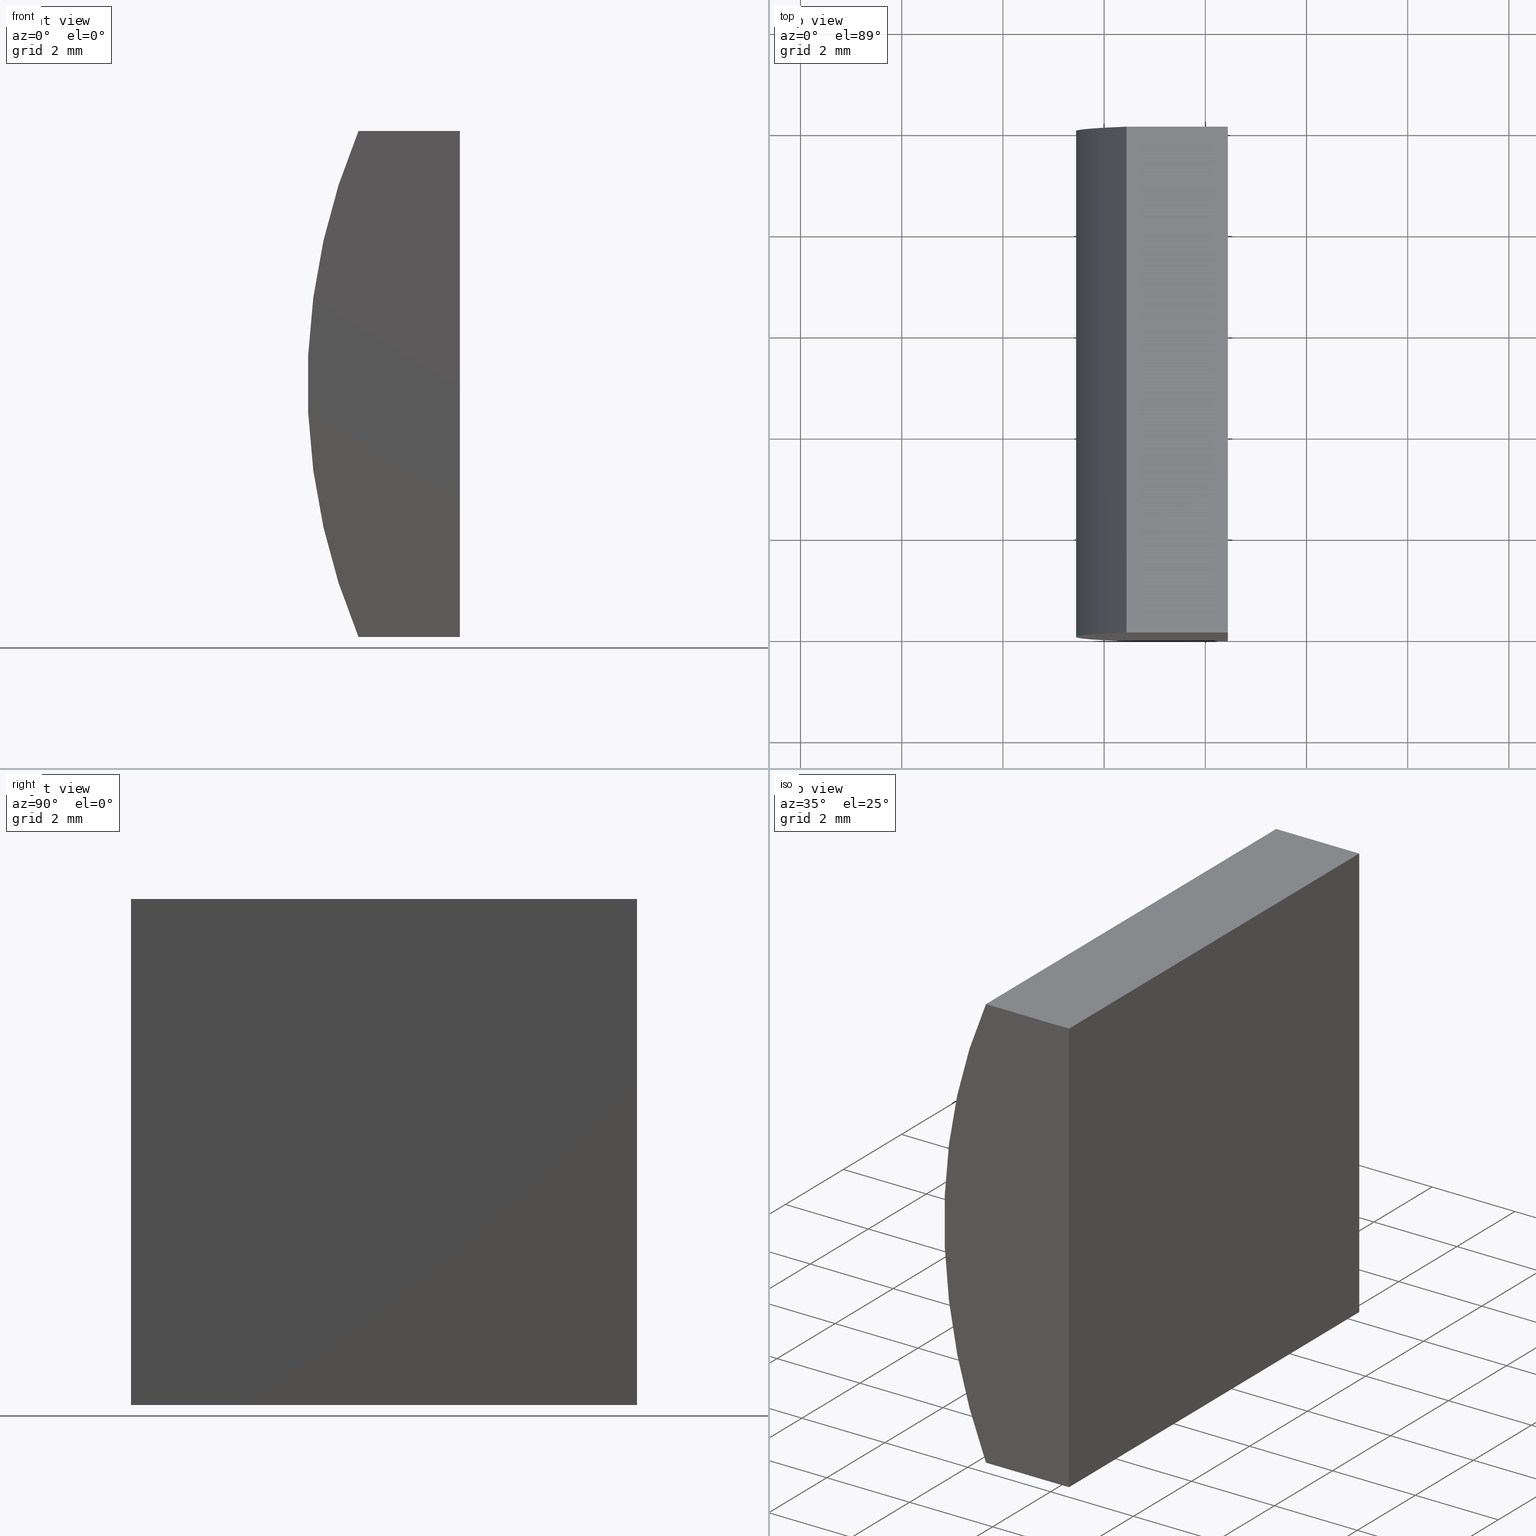
[diagram: canonical four-view strip — front | top / right | iso, engineering-drawing reading convention]
A machine part, canonical four-view strip (front | top / right | iso — engineering-drawing reading convention). The complete STEP part file that produces these views, byte-faithful:
ISO-10303-21;
HEADER;
FILE_DESCRIPTION (( 'STEP AP214' ),
    '1' );
FILE_NAME ('155009.STEP',
    '2019-06-17T01:13:44',
    ( 'user' ),
    ( '΢���й�' ),
    'SwSTEP 2.0',
    'SolidWorks 2016',
    '' );
FILE_SCHEMA (( 'AUTOMOTIVE_DESIGN' ));
ENDSEC;

DATA;
#1 = VECTOR ( 'NONE', #113, 1000.000000000000000 ) ;
#2 = ORIENTED_EDGE ( 'NONE', *, *, #143, .T. ) ;
#3 = UNCERTAINTY_MEASURE_WITH_UNIT (LENGTH_MEASURE( 1.000000000000000100E-005 ), #56, 'distance_accuracy_value', 'NONE');
#4 = ORIENTED_EDGE ( 'NONE', *, *, #29, .F. ) ;
#5 = DIRECTION ( 'NONE',  ( 3.469446951953614200E-016, 0.0000000000000000000, 1.000000000000000000 ) ) ;
#6 = PLANE ( 'NONE',  #48 ) ;
#7 = VECTOR ( 'NONE', #132, 1000.000000000000000 ) ;
#8 = CARTESIAN_POINT ( 'NONE',  ( -7.558082365299958900, 0.0000000000000000000, 5.000000000000000000 ) ) ;
#9 = DIRECTION ( 'NONE',  ( -1.000000000000000000, -0.0000000000000000000, -0.0000000000000000000 ) ) ;
#10 = FILL_AREA_STYLE_COLOUR ( '', #98 ) ;
#11 = FACE_OUTER_BOUND ( 'NONE', #35, .T. ) ;
#12 = DIRECTION ( 'NONE',  ( 0.0000000000000000000, 1.000000000000000000, 0.0000000000000000000 ) ) ;
#13 = LINE ( 'NONE', #19, #125 ) ;
#14 = ADVANCED_FACE ( 'NONE', ( #16 ), #122, .F. ) ;
#15 = PRODUCT_CONTEXT ( 'NONE', #25, 'mechanical' ) ;
#16 = FACE_OUTER_BOUND ( 'NONE', #97, .T. ) ;
#17 = UNCERTAINTY_MEASURE_WITH_UNIT (LENGTH_MEASURE( 1.000000000000000100E-005 ), #190, 'distance_accuracy_value', 'NONE');
#18 = DIRECTION ( 'NONE',  ( -0.0000000000000000000, -1.000000000000000000, -0.0000000000000000000 ) ) ;
#19 = CARTESIAN_POINT ( 'NONE',  ( -5.554795665148737300, 10.00000000000000000, -5.000000000000000000 ) ) ;
#20 = CARTESIAN_POINT ( 'NONE',  ( -5.554795665148733800, 10.00000000000000000, 5.000000000000000000 ) ) ;
#21 = SURFACE_SIDE_STYLE ('',( #140 ) ) ;
#22 = CARTESIAN_POINT ( 'NONE',  ( -7.558082365299958900, 0.0000000000000000000, -5.000000000000000000 ) ) ;
#23 = ORIENTED_EDGE ( 'NONE', *, *, #101, .T. ) ;
#24 = CARTESIAN_POINT ( 'NONE',  ( -7.558082365299958900, 10.00000000000000000, -5.000000000000000000 ) ) ;
#25 = APPLICATION_CONTEXT ( 'automotive_design' ) ;
#26 = DIRECTION ( 'NONE',  ( 0.0000000000000000000, 1.000000000000000000, 0.0000000000000000000 ) ) ;
#27 = EDGE_LOOP ( 'NONE', ( #31, #199, #45, #167 ) ) ;
#28 = DIRECTION ( 'NONE',  ( 0.0000000000000000000, 0.0000000000000000000, 1.000000000000000000 ) ) ;
#29 = EDGE_CURVE ( 'NONE', #172, #164, #135, .T. ) ;
#30 = EDGE_CURVE ( 'NONE', #172, #111, #39, .T. ) ;
#31 = ORIENTED_EDGE ( 'NONE', *, *, #65, .T. ) ;
#32 = SURFACE_STYLE_FILL_AREA ( #194 ) ;
#33 = CARTESIAN_POINT ( 'NONE',  ( -5.554795665148733800, 10.00000000000000000, 5.000000000000000000 ) ) ;
#34 = CARTESIAN_POINT ( 'NONE',  ( 4.355204334851265500, 10.00000000000000000, 4.286263797015675000E-017 ) ) ;
#35 = EDGE_LOOP ( 'NONE', ( #196, #185, #170, #162 ) ) ;
#36 = VECTOR ( 'NONE', #18, 1000.000000000000000 ) ;
#37 = PRODUCT_DEFINITION_SHAPE ( 'NONE', 'NONE',  #204 ) ;
#38 = DIRECTION ( 'NONE',  ( 0.0000000000000000000, 0.0000000000000000000, 1.000000000000000000 ) ) ;
#39 = LINE ( 'NONE', #126, #49 ) ;
#40 = SURFACE_SIDE_STYLE ('',( #32 ) ) ;
#41 = AXIS2_PLACEMENT_3D ( 'NONE', #34, #99, #52 ) ;
#42 = VERTEX_POINT ( 'NONE', #191 ) ;
#43 = VERTEX_POINT ( 'NONE', #8 ) ;
#44 =( NAMED_UNIT ( * ) SI_UNIT ( $, .STERADIAN. ) SOLID_ANGLE_UNIT ( ) );
#45 = ORIENTED_EDGE ( 'NONE', *, *, #120, .F. ) ;
#46 = DIRECTION ( 'NONE',  ( -1.000000000000000000, 0.0000000000000000000, -0.0000000000000000000 ) ) ;
#47 = CARTESIAN_POINT ( 'NONE',  ( -5.554795665148733800, 0.0000000000000000000, 5.000000000000000000 ) ) ;
#48 = AXIS2_PLACEMENT_3D ( 'NONE', #60, #110, #5 ) ;
#49 = VECTOR ( 'NONE', #175, 1000.000000000000000 ) ;
#50 = CLOSED_SHELL ( 'NONE', ( #55, #68, #119, #14, #136, #201 ) ) ;
#51 = FILL_AREA_STYLE ('',( #10 ) ) ;
#52 = DIRECTION ( 'NONE',  ( 0.0000000000000000000, 0.0000000000000000000, -1.000000000000000000 ) ) ;
#53 = LINE ( 'NONE', #95, #186 ) ;
#54 = VECTOR ( 'NONE', #59, 1000.000000000000000 ) ;
#55 = ADVANCED_FACE ( 'NONE', ( #11 ), #193, .T. ) ;
#56 =( LENGTH_UNIT ( ) NAMED_UNIT ( * ) SI_UNIT ( .MILLI., .METRE. ) );
#57 = CARTESIAN_POINT ( 'NONE',  ( -7.558082365299958900, 10.00000000000000000, -5.000000000000000000 ) ) ;
#58 = ORIENTED_EDGE ( 'NONE', *, *, #66, .T. ) ;
#59 = DIRECTION ( 'NONE',  ( 1.000000000000000000, 0.0000000000000000000, 0.0000000000000000000 ) ) ;
#60 = CARTESIAN_POINT ( 'NONE',  ( -5.554795665148737300, 10.00000000000000000, -5.000000000000000000 ) ) ;
#61 = PRODUCT_RELATED_PRODUCT_CATEGORY ( 'part', '', ( #94 ) ) ;
#62 = VERTEX_POINT ( 'NONE', #20 ) ;
#63 = FACE_OUTER_BOUND ( 'NONE', #156, .T. ) ;
#64 = DIRECTION ( 'NONE',  ( -1.000000000000000000, -0.0000000000000000000, -0.0000000000000000000 ) ) ;
#65 = EDGE_CURVE ( 'NONE', #43, #108, #72, .T. ) ;
#66 = EDGE_CURVE ( 'NONE', #62, #172, #13, .T. ) ;
#67 = VECTOR ( 'NONE', #9, 1000.000000000000000 ) ;
#68 = ADVANCED_FACE ( 'NONE', ( #138 ), #81, .F. ) ;
#69 = LINE ( 'NONE', #183, #36 ) ;
#70 = CARTESIAN_POINT ( 'NONE',  ( -5.554795665148737300, 0.0000000000000000000, -5.000000000000000000 ) ) ;
#71 = STYLED_ITEM ( 'NONE', ( #103 ), #181 ) ;
#72 = LINE ( 'NONE', #142, #1 ) ;
#73 = DIRECTION ( 'NONE',  ( 1.000000000000000000, 0.0000000000000000000, -0.0000000000000000000 ) ) ;
#74 = ORIENTED_EDGE ( 'NONE', *, *, #76, .T. ) ;
#75 = CARTESIAN_POINT ( 'NONE',  ( -5.554795665148737300, 0.0000000000000000000, -5.000000000000000000 ) ) ;
#76 = EDGE_CURVE ( 'NONE', #62, #108, #160, .T. ) ;
#77 = CARTESIAN_POINT ( 'NONE',  ( -7.558082365299958900, 10.00000000000000000, 5.000000000000000000 ) ) ;
#78 = ORIENTED_EDGE ( 'NONE', *, *, #65, .F. ) ;
#79 = CIRCLE ( 'NONE', #149, 12.92000000000000300 ) ;
#80 = AXIS2_PLACEMENT_3D ( 'NONE', #187, #26, #106 ) ;
#81 = PLANE ( 'NONE',  #93 ) ;
#82 = LINE ( 'NONE', #70, #86 ) ;
#83 = AXIS2_PLACEMENT_3D ( 'NONE', #92, #12, #182 ) ;
#84 = ORIENTED_EDGE ( 'NONE', *, *, #188, .F. ) ;
#85 = CARTESIAN_POINT ( 'NONE',  ( -7.558082365299958900, 10.00000000000000000, -5.000000000000000000 ) ) ;
#86 = VECTOR ( 'NONE', #89, 1000.000000000000000 ) ;
#87 =( NAMED_UNIT ( * ) SI_UNIT ( $, .STERADIAN. ) SOLID_ANGLE_UNIT ( ) );
#88 = STYLED_ITEM ( 'NONE', ( #184 ), #178 ) ;
#89 = DIRECTION ( 'NONE',  ( -3.469446951953614200E-016, -0.0000000000000000000, -1.000000000000000000 ) ) ;
#90 = ORIENTED_EDGE ( 'NONE', *, *, #120, .T. ) ;
#91 = FACE_OUTER_BOUND ( 'NONE', #197, .T. ) ;
#92 = CARTESIAN_POINT ( 'NONE',  ( 4.355204334851265500, 0.0000000000000000000, 4.286263797015675000E-017 ) ) ;
#93 = AXIS2_PLACEMENT_3D ( 'NONE', #77, #171, #46 ) ;
#94 = PRODUCT ( '155009', '155009', '', ( #15 ) ) ;
#95 = CARTESIAN_POINT ( 'NONE',  ( -7.558082365299958900, 0.0000000000000000000, -5.000000000000000000 ) ) ;
#96 = DIRECTION ( 'NONE',  ( 0.0000000000000000000, 0.0000000000000000000, 1.000000000000000000 ) ) ;
#97 = EDGE_LOOP ( 'NONE', ( #23, #114, #4, #129 ) ) ;
#98 = COLOUR_RGB ( '',1.000000000000000000, 1.000000000000000000, 1.000000000000000000 ) ;
#99 = DIRECTION ( 'NONE',  ( -0.0000000000000000000, -1.000000000000000000, -0.0000000000000000000 ) ) ;
#100 = SURFACE_STYLE_USAGE ( .BOTH. , #40 ) ;
#101 = EDGE_CURVE ( 'NONE', #111, #157, #53, .T. ) ;
#102 =( NAMED_UNIT ( * ) PLANE_ANGLE_UNIT ( ) SI_UNIT ( $, .RADIAN. ) );
#103 = PRESENTATION_STYLE_ASSIGNMENT (( #133 ) ) ;
#104 =( GEOMETRIC_REPRESENTATION_CONTEXT ( 3 ) GLOBAL_UNCERTAINTY_ASSIGNED_CONTEXT ( ( #145 ) ) GLOBAL_UNIT_ASSIGNED_CONTEXT ( ( #203, #102, #87 ) ) REPRESENTATION_CONTEXT ( 'NONE', 'WORKASPACE' ) );
#105 = APPLICATION_CONTEXT ( 'automotive_design' ) ;
#106 = DIRECTION ( 'NONE',  ( 0.0000000000000000000, -0.0000000000000000000, 1.000000000000000000 ) ) ;
#107 = CARTESIAN_POINT ( 'NONE',  ( 4.355204334851265500, 0.0000000000000000000, 4.286263797015675000E-017 ) ) ;
#108 = VERTEX_POINT ( 'NONE', #47 ) ;
#109 = SHAPE_DEFINITION_REPRESENTATION ( #37, #178 ) ;
#110 = DIRECTION ( 'NONE',  ( -1.000000000000000000, 0.0000000000000000000, 3.469446951953614200E-016 ) ) ;
#111 = VERTEX_POINT ( 'NONE', #75 ) ;
#112 = MECHANICAL_DESIGN_GEOMETRIC_PRESENTATION_REPRESENTATION (  '', ( #88 ), #124 ) ;
#113 = DIRECTION ( 'NONE',  ( 1.000000000000000000, 0.0000000000000000000, 0.0000000000000000000 ) ) ;
#114 = ORIENTED_EDGE ( 'NONE', *, *, #192, .F. ) ;
#115 = DIRECTION ( 'NONE',  ( 0.0000000000000000000, 1.000000000000000000, 0.0000000000000000000 ) ) ;
#116 = AXIS2_PLACEMENT_3D ( 'NONE', #24, #38, #73 ) ;
#117 = LINE ( 'NONE', #155, #180 ) ;
#118 = ORIENTED_EDGE ( 'NONE', *, *, #153, .T. ) ;
#119 = ADVANCED_FACE ( 'NONE', ( #63 ), #6, .F. ) ;
#120 = EDGE_CURVE ( 'NONE', #42, #62, #161, .T. ) ;
#121 = DIRECTION ( 'NONE',  ( 1.000000000000000000, 0.0000000000000000000, 0.0000000000000000000 ) ) ;
#122 = PLANE ( 'NONE',  #116 ) ;
#123 = ORIENTED_EDGE ( 'NONE', *, *, #30, .F. ) ;
#124 =( GEOMETRIC_REPRESENTATION_CONTEXT ( 3 ) GLOBAL_UNCERTAINTY_ASSIGNED_CONTEXT ( ( #3 ) ) GLOBAL_UNIT_ASSIGNED_CONTEXT ( ( #56, #154, #44 ) ) REPRESENTATION_CONTEXT ( 'NONE', 'WORKASPACE' ) );
#125 = VECTOR ( 'NONE', #131, 1000.000000000000000 ) ;
#126 = CARTESIAN_POINT ( 'NONE',  ( -5.554795665148737300, 10.00000000000000000, -5.000000000000000000 ) ) ;
#127 = PRESENTATION_LAYER_ASSIGNMENT (  '', '', ( #71 ) ) ;
#128 = PLANE ( 'NONE',  #83 ) ;
#129 = ORIENTED_EDGE ( 'NONE', *, *, #30, .T. ) ;
#130 =( NAMED_UNIT ( * ) PLANE_ANGLE_UNIT ( ) SI_UNIT ( $, .RADIAN. ) );
#131 = DIRECTION ( 'NONE',  ( -3.469446951953614200E-016, -0.0000000000000000000, -1.000000000000000000 ) ) ;
#132 = DIRECTION ( 'NONE',  ( -0.0000000000000000000, -1.000000000000000000, -0.0000000000000000000 ) ) ;
#133 = SURFACE_STYLE_USAGE ( .BOTH. , #21 ) ;
#134 = COLOUR_RGB ( '',1.000000000000000000, 1.000000000000000000, 1.000000000000000000 ) ;
#135 = LINE ( 'NONE', #57, #67 ) ;
#136 = ADVANCED_FACE ( 'NONE', ( #147 ), #141, .T. ) ;
#137 = MECHANICAL_DESIGN_GEOMETRIC_PRESENTATION_REPRESENTATION (  '', ( #71 ), #189 ) ;
#138 = FACE_OUTER_BOUND ( 'NONE', #27, .T. ) ;
#139 = EDGE_LOOP ( 'NONE', ( #2, #90, #58, #179 ) ) ;
#140 = SURFACE_STYLE_FILL_AREA ( #51 ) ;
#141 = PLANE ( 'NONE',  #80 ) ;
#142 = CARTESIAN_POINT ( 'NONE',  ( -7.558082365299958900, 0.0000000000000000000, 5.000000000000000000 ) ) ;
#143 = EDGE_CURVE ( 'NONE', #164, #42, #200, .T. ) ;
#144 = PRODUCT_DEFINITION_CONTEXT ( 'detailed design', #105, 'design' ) ;
#145 = UNCERTAINTY_MEASURE_WITH_UNIT (LENGTH_MEASURE( 1.000000000000000100E-005 ), #203, 'distance_accuracy_value', 'NONE');
#146 = AXIS2_PLACEMENT_3D ( 'NONE', #169, #148, #150 ) ;
#147 = FACE_OUTER_BOUND ( 'NONE', #139, .T. ) ;
#148 = DIRECTION ( 'NONE',  ( 0.0000000000000000000, 1.000000000000000000, 0.0000000000000000000 ) ) ;
#149 = AXIS2_PLACEMENT_3D ( 'NONE', #107, #115, #96 ) ;
#150 = DIRECTION ( 'NONE',  ( 0.0000000000000000000, 0.0000000000000000000, 1.000000000000000000 ) ) ;
#151 = CARTESIAN_POINT ( 'NONE',  ( 0.0000000000000000000, 0.0000000000000000000, 0.0000000000000000000 ) ) ;
#152 = ORIENTED_EDGE ( 'NONE', *, *, #153, .F. ) ;
#153 = EDGE_CURVE ( 'NONE', #108, #111, #82, .T. ) ;
#154 =( NAMED_UNIT ( * ) PLANE_ANGLE_UNIT ( ) SI_UNIT ( $, .RADIAN. ) );
#155 = CARTESIAN_POINT ( 'NONE',  ( -7.558082365299958900, 10.00000000000000000, 5.000000000000000000 ) ) ;
#156 = EDGE_LOOP ( 'NONE', ( #118, #123, #168, #74 ) ) ;
#157 = VERTEX_POINT ( 'NONE', #22 ) ;
#158 = AXIS2_PLACEMENT_3D ( 'NONE', #151, #28, #121 ) ;
#159 = CARTESIAN_POINT ( 'NONE',  ( -7.558082365299958900, 10.00000000000000000, 5.000000000000000000 ) ) ;
#160 = LINE ( 'NONE', #33, #7 ) ;
#161 = LINE ( 'NONE', #159, #54 ) ;
#162 = ORIENTED_EDGE ( 'NONE', *, *, #192, .T. ) ;
#163 = PRESENTATION_LAYER_ASSIGNMENT (  '', '', ( #88 ) ) ;
#164 = VERTEX_POINT ( 'NONE', #85 ) ;
#165 = APPLICATION_PROTOCOL_DEFINITION ( 'draft international standard', 'automotive_design', 1998, #25 ) ;
#166 = PRODUCT_DEFINITION_FORMATION_WITH_SPECIFIED_SOURCE ( '�κ�', '', #94, .NOT_KNOWN. ) ;
#167 = ORIENTED_EDGE ( 'NONE', *, *, #195, .T. ) ;
#168 = ORIENTED_EDGE ( 'NONE', *, *, #66, .F. ) ;
#169 = CARTESIAN_POINT ( 'NONE',  ( 4.355204334851265500, 10.00000000000000000, 4.286263797015675000E-017 ) ) ;
#170 = ORIENTED_EDGE ( 'NONE', *, *, #143, .F. ) ;
#171 = DIRECTION ( 'NONE',  ( 0.0000000000000000000, 0.0000000000000000000, -1.000000000000000000 ) ) ;
#172 = VERTEX_POINT ( 'NONE', #177 ) ;
#173 = ORIENTED_EDGE ( 'NONE', *, *, #101, .F. ) ;
#174 =( NAMED_UNIT ( * ) SI_UNIT ( $, .STERADIAN. ) SOLID_ANGLE_UNIT ( ) );
#175 = DIRECTION ( 'NONE',  ( -0.0000000000000000000, -1.000000000000000000, -0.0000000000000000000 ) ) ;
#176 = FILL_AREA_STYLE_COLOUR ( '', #134 ) ;
#177 = CARTESIAN_POINT ( 'NONE',  ( -5.554795665148737300, 10.00000000000000000, -5.000000000000000000 ) ) ;
#178 = ADVANCED_BREP_SHAPE_REPRESENTATION ( '155009', ( #181, #158 ), #104 ) ;
#179 = ORIENTED_EDGE ( 'NONE', *, *, #29, .T. ) ;
#180 = VECTOR ( 'NONE', #198, 1000.000000000000000 ) ;
#181 = MANIFOLD_SOLID_BREP ( '͹̨-����1', #50 ) ;
#182 = DIRECTION ( 'NONE',  ( 0.0000000000000000000, -0.0000000000000000000, 1.000000000000000000 ) ) ;
#183 = CARTESIAN_POINT ( 'NONE',  ( -7.558082365299958900, 10.00000000000000000, -5.000000000000000000 ) ) ;
#184 = PRESENTATION_STYLE_ASSIGNMENT (( #100 ) ) ;
#185 = ORIENTED_EDGE ( 'NONE', *, *, #195, .F. ) ;
#186 = VECTOR ( 'NONE', #64, 1000.000000000000000 ) ;
#187 = CARTESIAN_POINT ( 'NONE',  ( 4.355204334851265500, 10.00000000000000000, 4.286263797015675000E-017 ) ) ;
#188 = EDGE_CURVE ( 'NONE', #157, #43, #79, .T. ) ;
#189 =( GEOMETRIC_REPRESENTATION_CONTEXT ( 3 ) GLOBAL_UNCERTAINTY_ASSIGNED_CONTEXT ( ( #17 ) ) GLOBAL_UNIT_ASSIGNED_CONTEXT ( ( #190, #130, #174 ) ) REPRESENTATION_CONTEXT ( 'NONE', 'WORKASPACE' ) );
#190 =( LENGTH_UNIT ( ) NAMED_UNIT ( * ) SI_UNIT ( .MILLI., .METRE. ) );
#191 = CARTESIAN_POINT ( 'NONE',  ( -7.558082365299958900, 10.00000000000000000, 5.000000000000000000 ) ) ;
#192 = EDGE_CURVE ( 'NONE', #164, #157, #69, .T. ) ;
#193 = CYLINDRICAL_SURFACE ( 'NONE', #41, 12.92000000000000300 ) ;
#194 = FILL_AREA_STYLE ('',( #176 ) ) ;
#195 = EDGE_CURVE ( 'NONE', #42, #43, #117, .T. ) ;
#196 = ORIENTED_EDGE ( 'NONE', *, *, #188, .T. ) ;
#197 = EDGE_LOOP ( 'NONE', ( #84, #173, #152, #78 ) ) ;
#198 = DIRECTION ( 'NONE',  ( -0.0000000000000000000, -1.000000000000000000, -0.0000000000000000000 ) ) ;
#199 = ORIENTED_EDGE ( 'NONE', *, *, #76, .F. ) ;
#200 = CIRCLE ( 'NONE', #146, 12.92000000000000300 ) ;
#201 = ADVANCED_FACE ( 'NONE', ( #91 ), #128, .F. ) ;
#202 = APPLICATION_PROTOCOL_DEFINITION ( 'draft international standard', 'automotive_design', 1998, #105 ) ;
#203 =( LENGTH_UNIT ( ) NAMED_UNIT ( * ) SI_UNIT ( .MILLI., .METRE. ) );
#204 = PRODUCT_DEFINITION ( 'δ֪', '', #166, #144 ) ;
ENDSEC;
END-ISO-10303-21;
